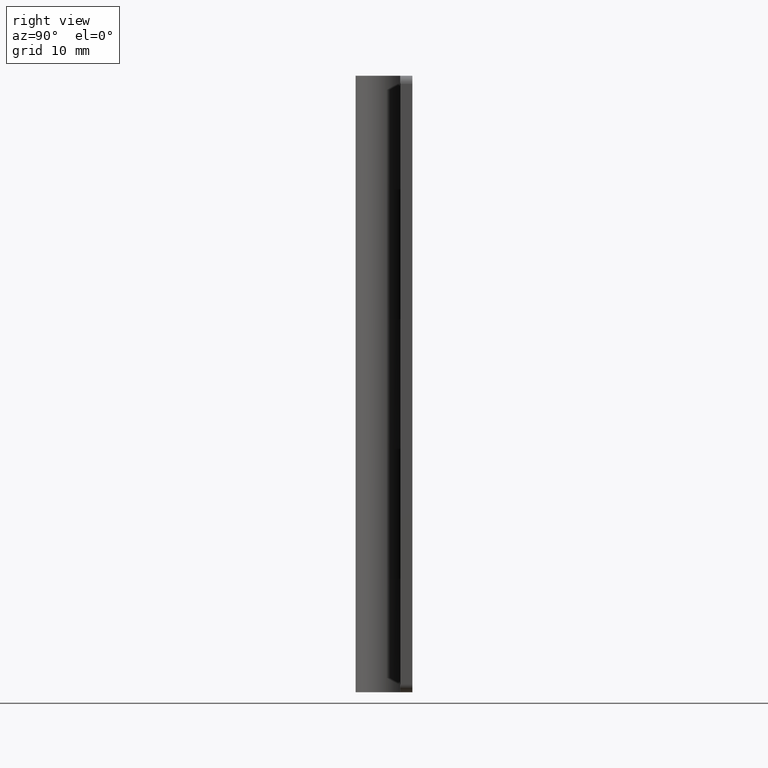
[diagram: clean part render]
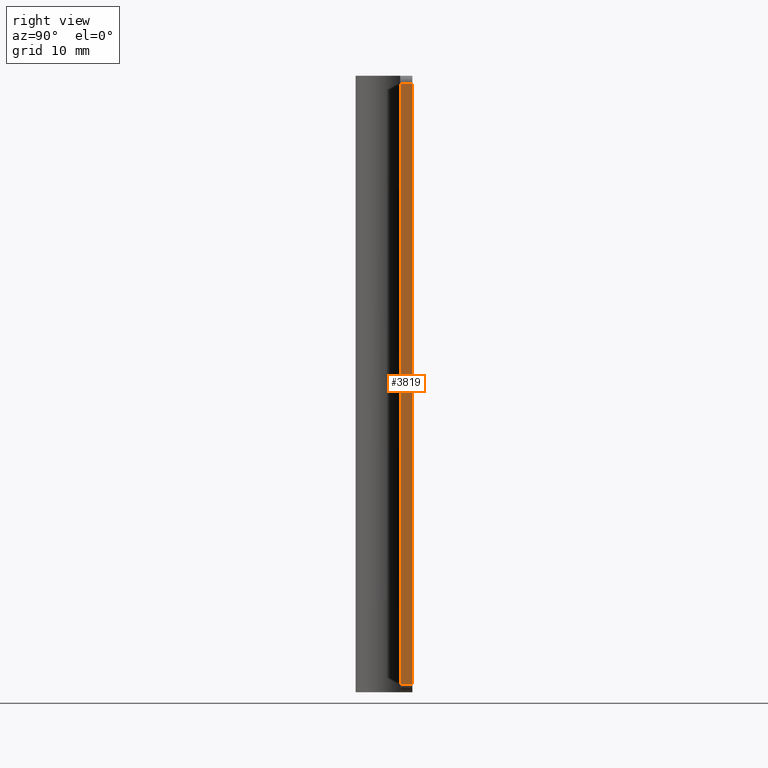
[diagram: same view with one face highlighted and labeled with its STEP entity id]
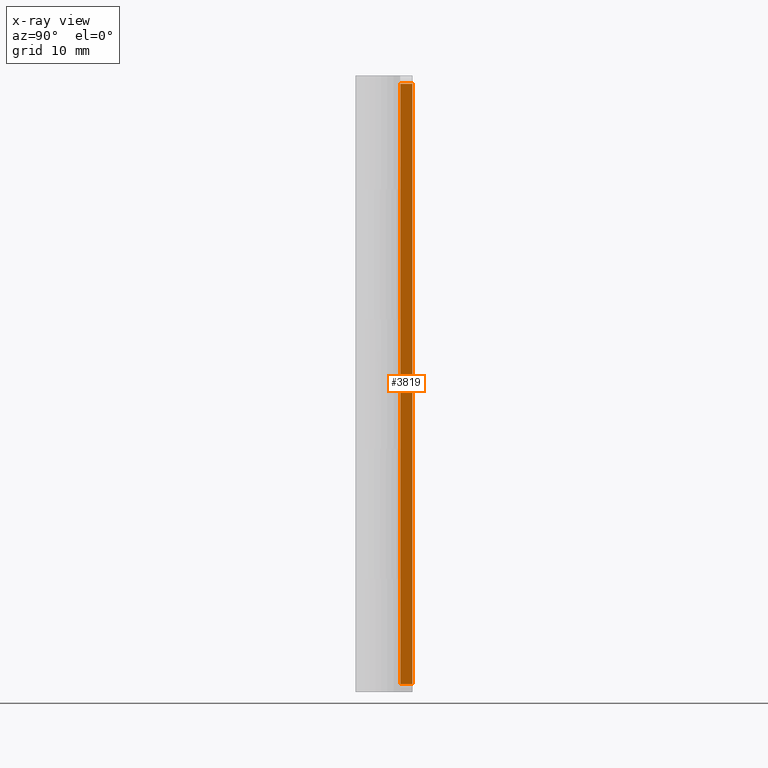
[diagram: x-ray of the same camera — body ghosted, the highlighted face saturated]
A machine part, right view. The second image highlights one B-rep face of the part: STEP entity #3819.
The next image is the same camera in x-ray: the body ghosted, the highlighted face saturated — about 0% of this face is hidden behind the body in this view.
In plain terms, the highlighted face is a freeform B-spline surface patch.
Its self-contained STEP definition (entity closure, byte-faithful):
#3552=CARTESIAN_POINT('',(23.999991999999899,2.0,75.000008000000108));
#3553=VERTEX_POINT('',#3552);
#3569=CARTESIAN_POINT('',(23.999991999999899,3.499999999999950,75.000008000000108));
#3570=VERTEX_POINT('',#3569);
#3571=CARTESIAN_POINT('',(23.999991999999899,3.499999999999950,75.000008000000108));
#3572=CARTESIAN_POINT('',(23.999991999999899,2.0,75.000008000000108));
#3573=QUASI_UNIFORM_CURVE('',1,(#3571,#3572),.UNSPECIFIED.,.F.,.U.);
#3574=EDGE_CURVE('',#3570,#3553,#3573,.T.);
#3615=CARTESIAN_POINT('',(23.999991999999899,2.0,1.0));
#3616=VERTEX_POINT('',#3615);
#3637=CARTESIAN_POINT('',(23.999991999999899,3.499999999999950,1.0));
#3638=VERTEX_POINT('',#3637);
#3652=CARTESIAN_POINT('',(23.999991999999899,3.499999999999950,1.0));
#3653=CARTESIAN_POINT('',(23.999991999999899,2.0,1.0));
#3654=QUASI_UNIFORM_CURVE('',1,(#3652,#3653),.UNSPECIFIED.,.F.,.U.);
#3655=EDGE_CURVE('',#3638,#3616,#3654,.T.);
#3800=CARTESIAN_POINT('',(23.999991999999899,1.925075002907294,78.696308256173751));
#3801=CARTESIAN_POINT('',(23.999991999999899,1.925075002907294,-2.696302241008514));
#3802=CARTESIAN_POINT('',(23.999991999999899,3.574925037325792,78.696308256173751));
#3803=CARTESIAN_POINT('',(23.999991999999899,3.574925037325792,-2.696302241008514));
#3804=B_SPLINE_SURFACE_WITH_KNOTS('',1,1,((#3800,#3802),(#3801,#3803)),.UNSPECIFIED.,.F.,.F.,.U.,(2,2),(2,2),(0.0,81.392610497182261),(0.041708334948495,0.958291687403247),.UNSPECIFIED.);
#3805=CARTESIAN_POINT('',(23.999991999999899,3.499999999999950,1.0));
#3806=CARTESIAN_POINT('',(23.999991999999899,3.499999999999950,75.000008000000108));
#3807=QUASI_UNIFORM_CURVE('',1,(#3805,#3806),.UNSPECIFIED.,.F.,.U.);
#3808=EDGE_CURVE('',#3638,#3570,#3807,.T.);
#3809=ORIENTED_EDGE('',*,*,#3808,.T.);
#3810=ORIENTED_EDGE('',*,*,#3574,.T.);
#3811=CARTESIAN_POINT('',(23.999991999999899,2.0,1.0));
#3812=CARTESIAN_POINT('',(23.999991999999899,2.0,75.000008000000108));
#3813=QUASI_UNIFORM_CURVE('',1,(#3811,#3812),.UNSPECIFIED.,.F.,.U.);
#3814=EDGE_CURVE('',#3616,#3553,#3813,.T.);
#3815=ORIENTED_EDGE('',*,*,#3814,.F.);
#3816=ORIENTED_EDGE('',*,*,#3655,.F.);
#3817=EDGE_LOOP('',(#3809,#3810,#3815,#3816));
#3818=FACE_OUTER_BOUND('',#3817,.T.);
#3819=ADVANCED_FACE('',(#3818),#3804,.T.);